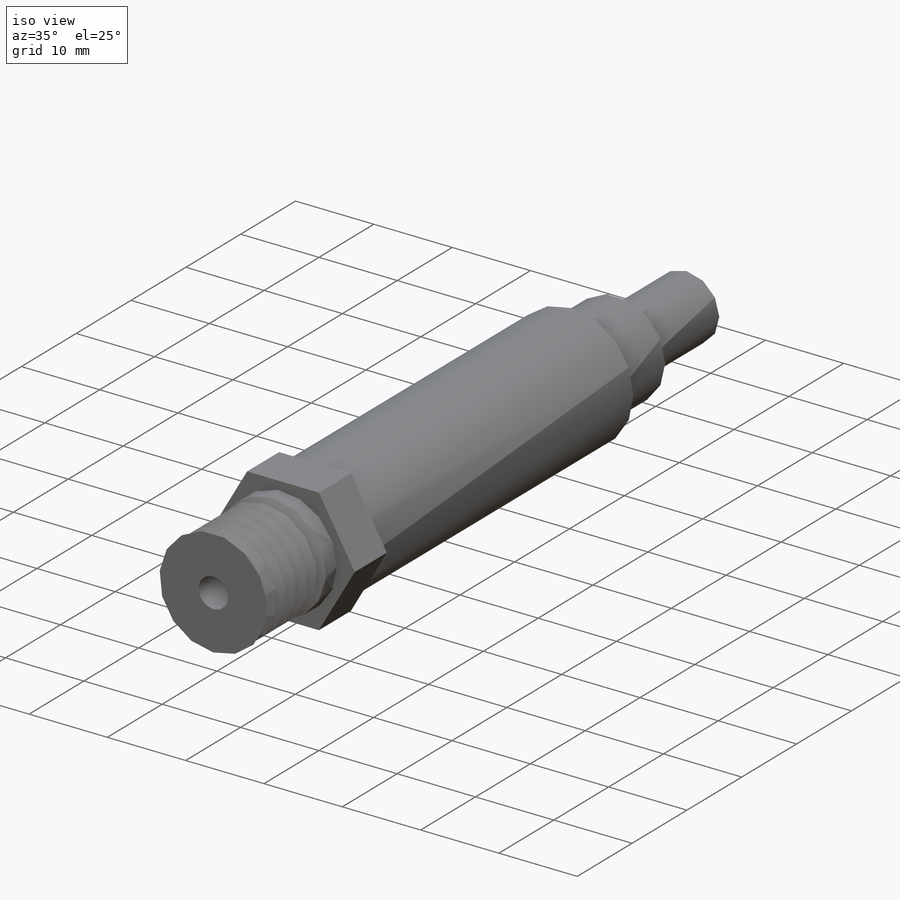
[diagram: iso view]
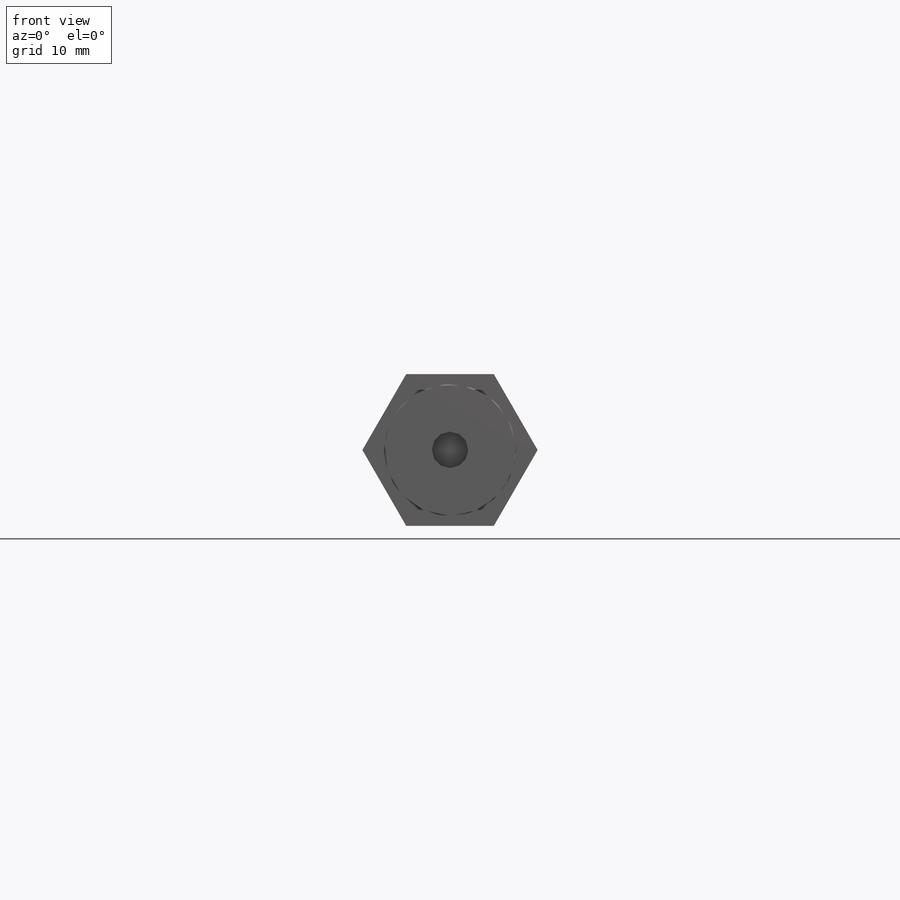
[diagram: front view]
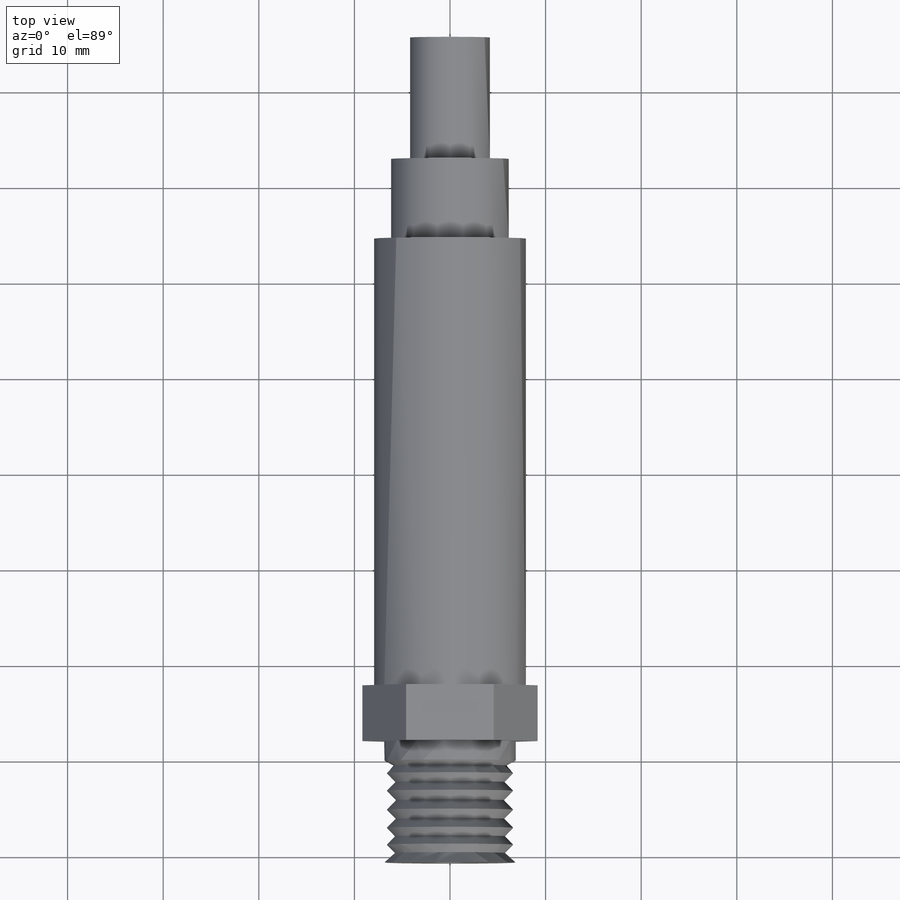
[diagram: top view]
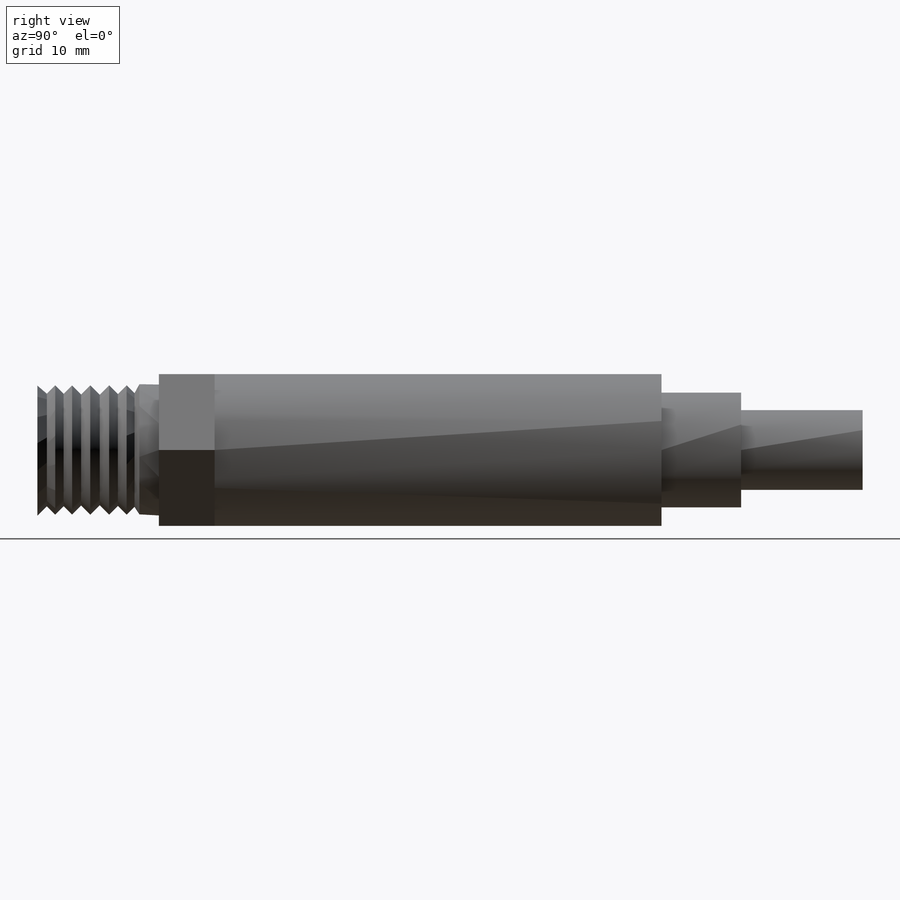
[diagram: right view]
SOLIDWORKS PART (.sldprt)
format: sldprt  version: not decoded by parser v0  size: 179,712 bytes
history: native  units: mm
features: sketch x8, extrude x6, material x1, cut_revolve x1, cut_extrude x1 (+11 scaffold rows collapsed)
feature tree (28):
  scaffold x11  (default folders/planes/origin — collapsed)
  material  "Chrome Stainless Steel"
  sketch  "Sketch1"  dims[D1=271.0mm]
  extrude  "Extrude1"  Depth=10.668mm
  sketch  "Sketch2"
  cut_revolve  "Cut-Revolve5"  Angle=360deg
  extrude  "Extrude2"  [1 undecoded]
  sketch  "Sketch1<2>"  dims[D1=2.032mm]
  sketch  "Sketch3"  dims[D1=3.81mm]
  cut_extrude  "Cut-Extrude1"  Depth=6.35mm
  sketch  "Sketch4"  dims[D1=7.9375mm D2=7.9375mm D3=7.9375mm D4=7.9375mm D5=7.9375mm D6=11.1125mm]
  extrude  "Extrude3"  Depth=5.842mm
  sketch  "Sketch5"  dims[D1=11.1125mm]
  extrude  "Extrude4"  Depth=46.736mm
  sketch  "Sketch6"  dims[D1=~4.940085mm]
  extrude  "Extrude5"  Depth=8.334375mm
  sketch  "Sketch7"  dims[D1=~3.815136mm]
  extrude  "Extrude6"  Depth=12.7mm
decode coverage: 14 of 16 modeling features carry decoded parameters
note: ~ marks probable driven/reference dimensions
note: 1 parameter value undecoded
note: suppression state not decoded; provenance and decode notes live in map.json
